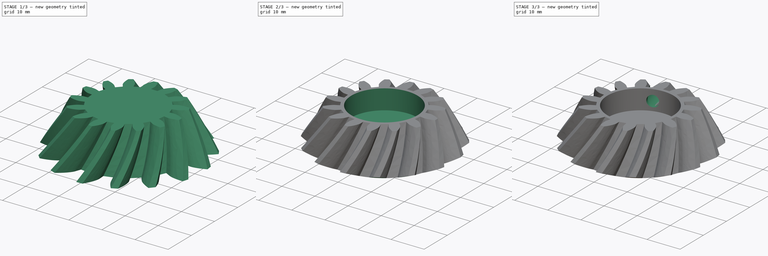
[diagram: build sequence overview — one tinted view per stage of 3, left to right]
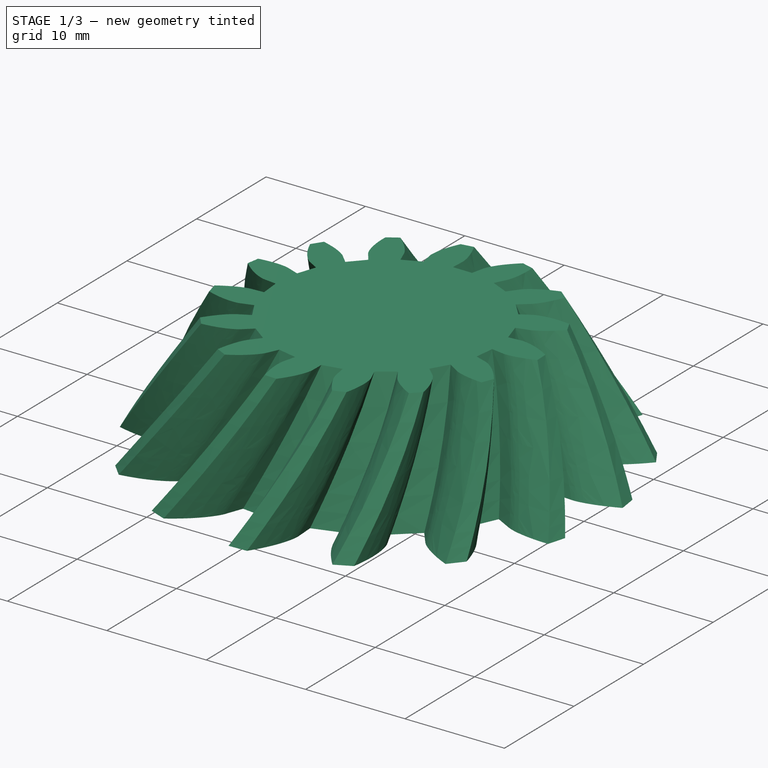
[diagram: stage 1 of 3 — iso view after this stage's code; geometry added in this stage tinted green]
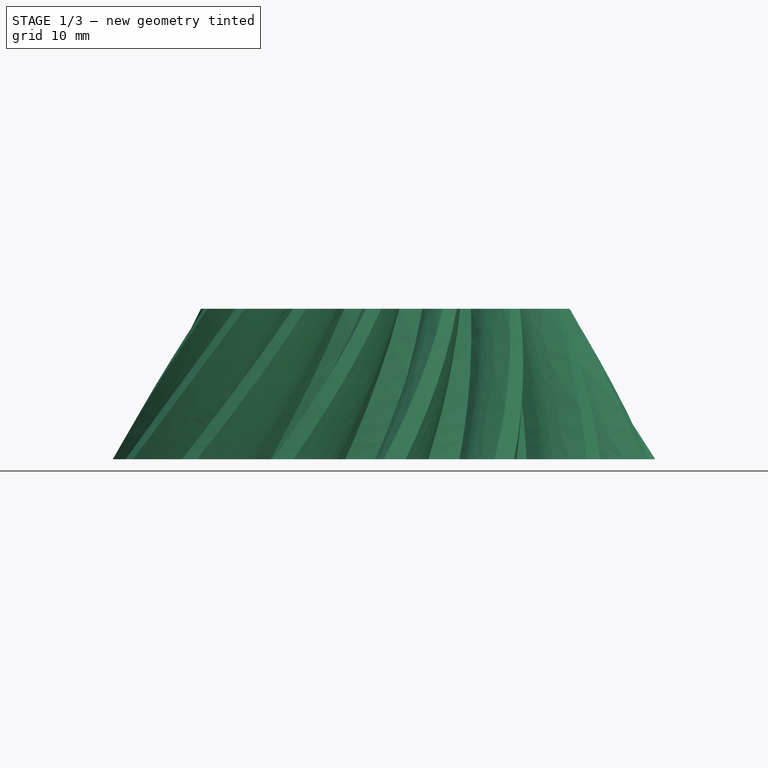
[diagram: stage 1 of 3 — front view after this stage's code; geometry added in this stage tinted green]
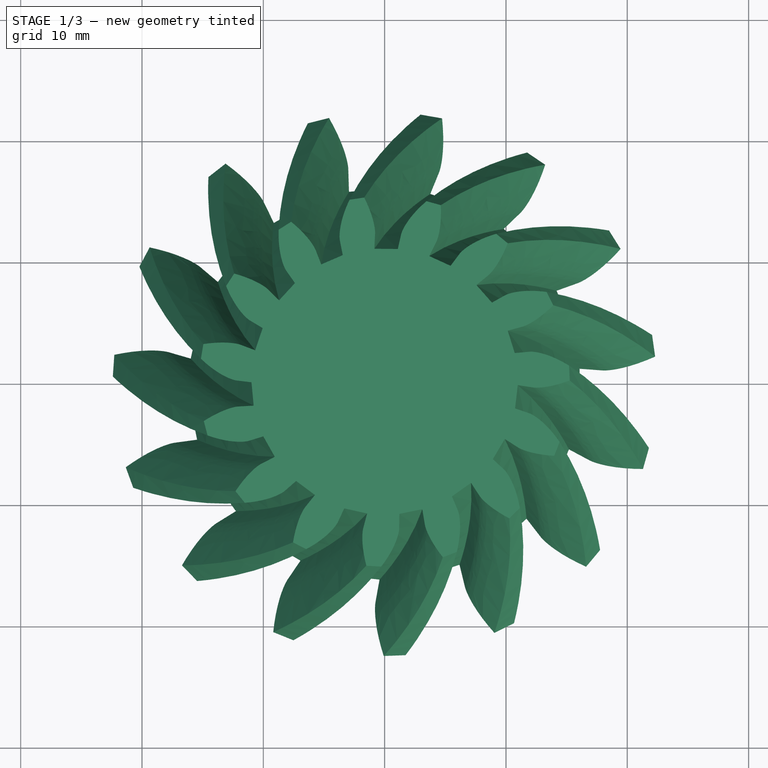
[diagram: stage 1 of 3 — top view after this stage's code; geometry added in this stage tinted green]
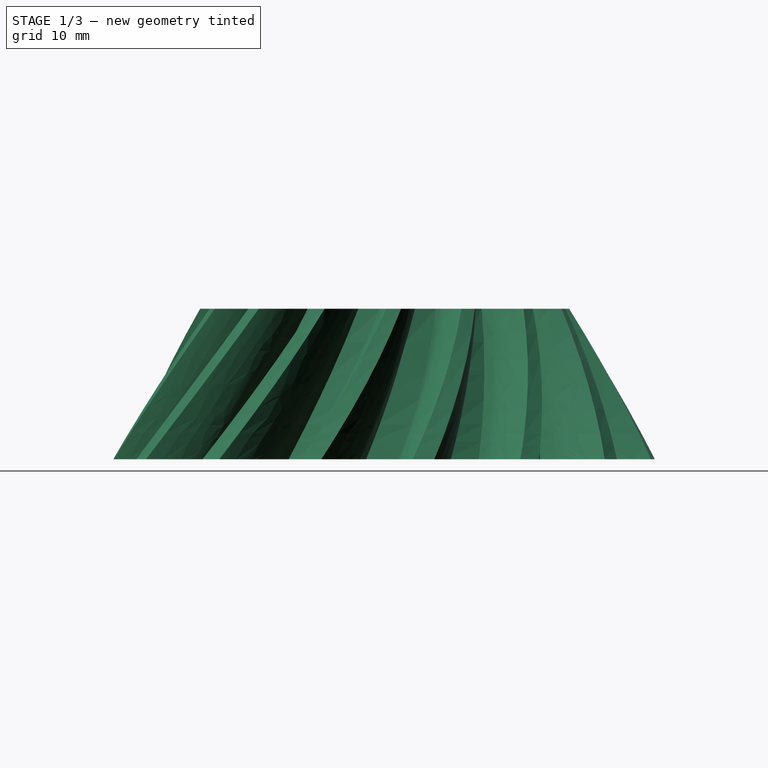
[diagram: stage 1 of 3 — right view after this stage's code; geometry added in this stage tinted green]
FCSTD DOCUMENT  (FreeCAD 0.19R24276 (Git))
Label: Art56SmallGear
License: All rights reserved
LicenseURL: http://en.wikipedia.org/wiki/All_rights_reserved
objects: Sketcher::SketchObject×4, PartDesign::Pocket×3, PartDesign::Plane×2, PartDesign::CoordinateSystem×2, Spreadsheet::Sheet×1, Part::FeaturePython×1, PartDesign::FeatureBase×1, PartDesign::Groove×1, PartDesign::Line×1, PartDesign::Body×1
note: 20 computed .brp shape members not serialized (recipe doc carries the construction recipe); baked Part::Feature solids carry a one-line shape summary decoded from their .brp

FEATURE [Spreadsheet::Sheet] Spreadsheet
  cells = A2=M3BoltBodyRadius; B2(M3BoltBodyRadius)=1.7; A3=M3BoltHeadRadius; B3(M3BoltHeadRadius)=2.95; A4=M3NutCircumradius; B4(M3NutCircumradius)=3.35; A5=M3NutThickness; B5(M3NutThickness)=3; A6=Bearing655ZZBodyRadius; B6(Bearing655ZZBodyRadius)=8.199999999999999; A7=MagnetRadius; B7(MagnetRadius)=4.2; A8=MagnetThickness; B8(MagnetThickness)=1.1; A9=M2BoltBodyRadius; B9(M2BoltBodyRadius)=1.2; A10=M2BoltHeadRadius; B10(M2BoltHeadRadius)=2.1; A11=M5BoltBodyRadius; B11(M5BoltBodyRadius)=2.6
FEATURE [Part::FeaturePython] bevelgear001  label="bevelgear"  # WARN: FeaturePython — macro-defined, semantics opaque (R4)
  backlash = 0
  beta = 10
  clearance = 1
  height = 12.4
  module = 2.59
  numpoints = 20
  pitch_angle = 26.565
  pressure_angle = 20
  reset_origin = true
  teeth = 15
  version = 0.0.3
FEATURE [PartDesign::FeatureBase] BaseFeature
  BaseFeature = -> bevelgear001
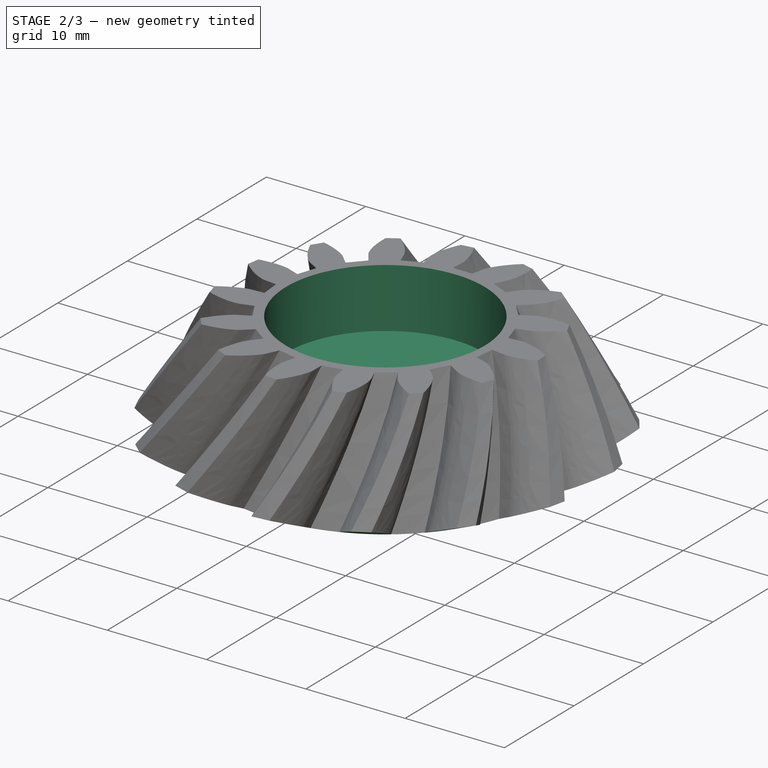
[diagram: stage 2 of 3 — iso view after this stage's code; geometry added in this stage tinted green]
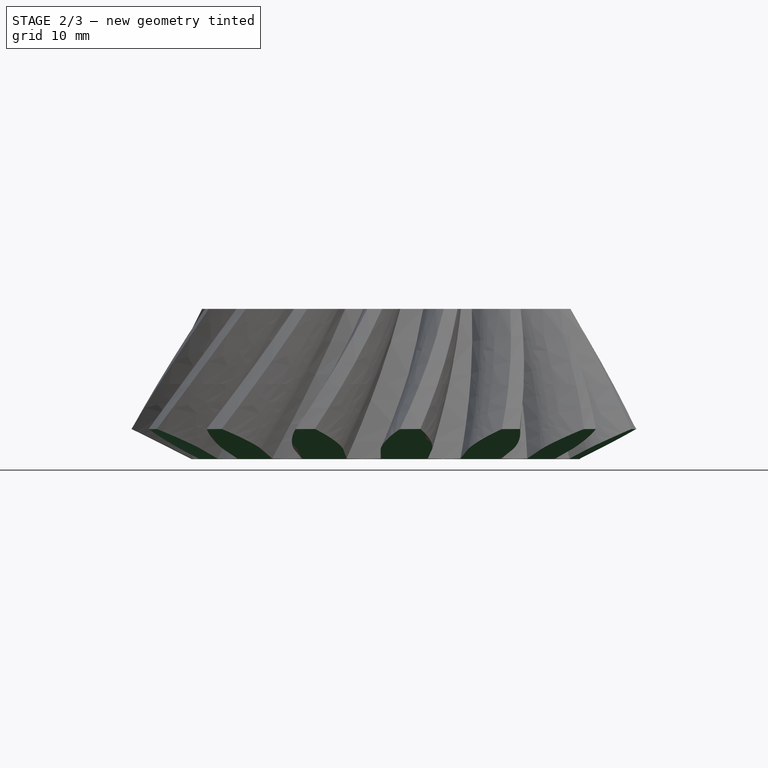
[diagram: stage 2 of 3 — front view after this stage's code; geometry added in this stage tinted green]
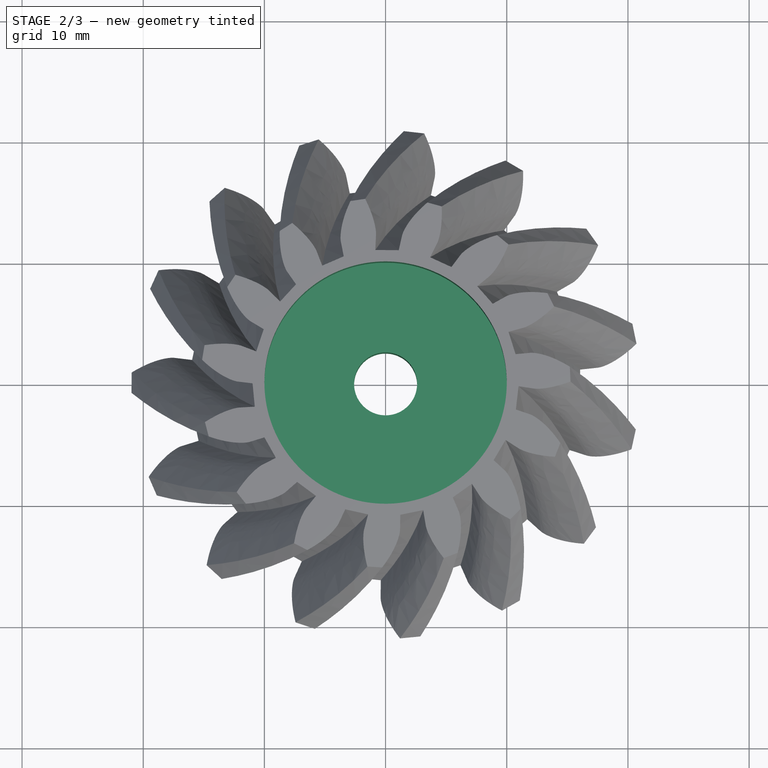
[diagram: stage 2 of 3 — top view after this stage's code; geometry added in this stage tinted green]
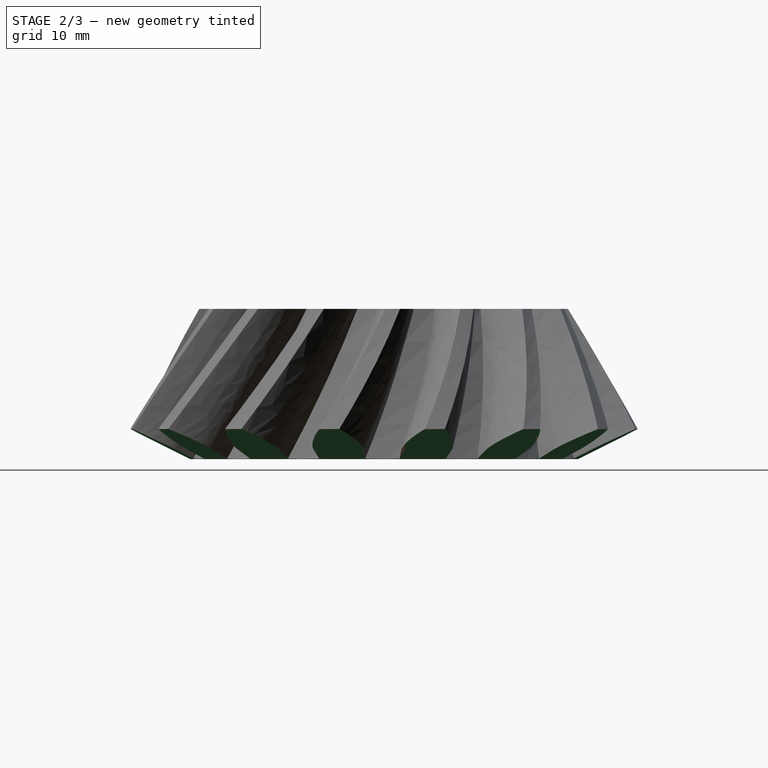
[diagram: stage 2 of 3 — right view after this stage's code; geometry added in this stage tinted green]
FEATURE [Sketcher::SketchObject] Sketch
  FullyConstrained = true
  MapMode = 5
  Placement = pos=(0,0,0) rot=(1,0,0;1.5708rad)
  Support = -> [XZ_Plane]
  sketch-geometry (8):
    g0: LineSegment StartX=16 StartY=0 StartZ=0 EndX=23 EndY=3.49999 EndZ=0
    g1: LineSegment StartX=23 StartY=3.49999 StartZ=0 EndX=26 EndY=3.49999 EndZ=0
    g2: LineSegment StartX=26 StartY=3.49999 StartZ=0 EndX=26 EndY=0 EndZ=0
    g3: LineSegment StartX=26 StartY=0 StartZ=0 EndX=16 EndY=0 EndZ=0
    g4: LineSegment StartX=0 StartY=16.4 StartZ=0 EndX=10 EndY=16.4 EndZ=0
    g5: LineSegment StartX=10 StartY=16.4 StartZ=0 EndX=10 EndY=6.4 EndZ=0
    g6: LineSegment StartX=10 StartY=6.4 StartZ=0 EndX=0 EndY=6.4 EndZ=0
    g7: LineSegment StartX=0 StartY=6.4 StartZ=0 EndX=0 EndY=16.4 EndZ=0
  constraints (24):
    c: PointOnObject(g0,g-1)
    c: Coincident(g0,g1)
    c: Horizontal(g1)
    c: Coincident(g1,g2)
    c: PointOnObject(g2,g-1)
    c: Vertical(g2)
    c: Coincident(g2,g3)
    c: Coincident(g3,g0)
    c: Angle(g3,g0) = 0.463647
    c: DistanceX(g-1,g0) = 16
    c: DistanceX(g3,g3) = 10
    c: DistanceX(g1,g1) = 3
    c: Coincident(g4,g5)
    c: Coincident(g5,g6)
    c: Coincident(g6,g7)
    c: Coincident(g7,g4)
    c: Horizontal(g4)
    c: Horizontal(g6)
    c: Vertical(g5)
    c: Vertical(g7)
    c: PointOnObject(g4,g-2)
    c: DistanceX(g6,g6) = 10
    c: DistanceY(g-1,g6) = 6.4
    c: DistanceY(g7,g7) = 10
FEATURE [PartDesign::Groove] Groove
  Angle = 360
  Axis = (0,2e-16,1)
  Base = (0,0,0)
  BaseFeature = -> BaseFeature
  Profile = -> Sketch
  ReferenceAxis = -> Sketch [V_Axis]
  Refine = true
FEATURE [Sketcher::SketchObject] Sketch001
  FullyConstrained = true
  MapMode = 5
  Placement = pos=(0,1.4e-15,6.4) rot=(0,0,1;0rad)
  Support = -> [Groove]
  expr: Constraints[1] = Spreadsheet.M5BoltBodyRadius
  sketch-geometry (1):
    g0: Circle CenterX=0 CenterY=0 CenterZ=0 NormalX=0 NormalY=0 NormalZ=1 AngleXU=0 Radius=2.6
  constraints (2):
    c: Coincident(g0,g-1)
    c: Radius(g0) = 2.6
FEATURE [PartDesign::Pocket] Pocket
  BaseFeature = -> Groove
  Length = 5
  Length2 = 100
  Profile = -> Sketch001
  Refine = true
  Type = 1
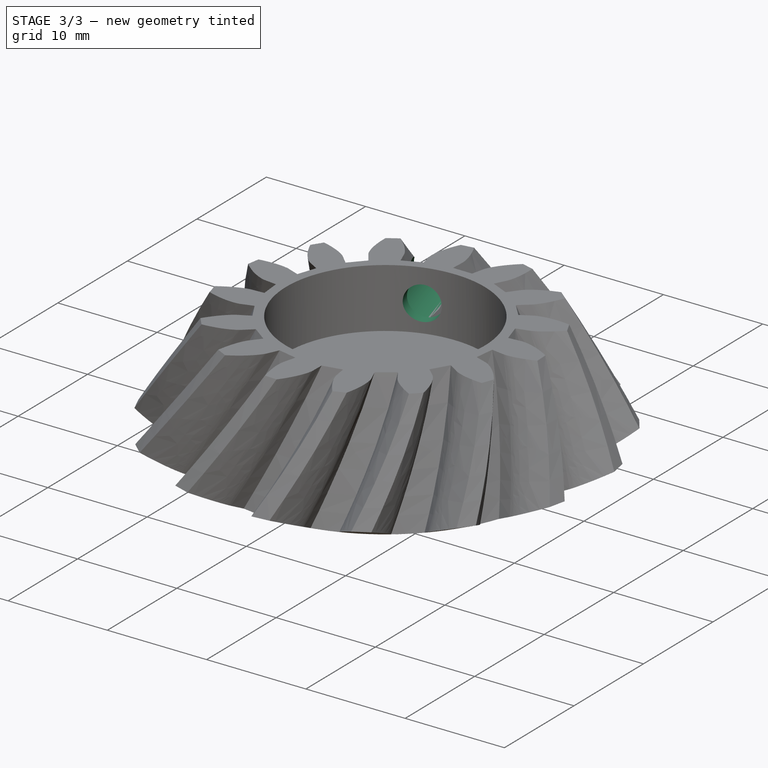
[diagram: stage 3 of 3 — iso view after this stage's code; geometry added in this stage tinted green]
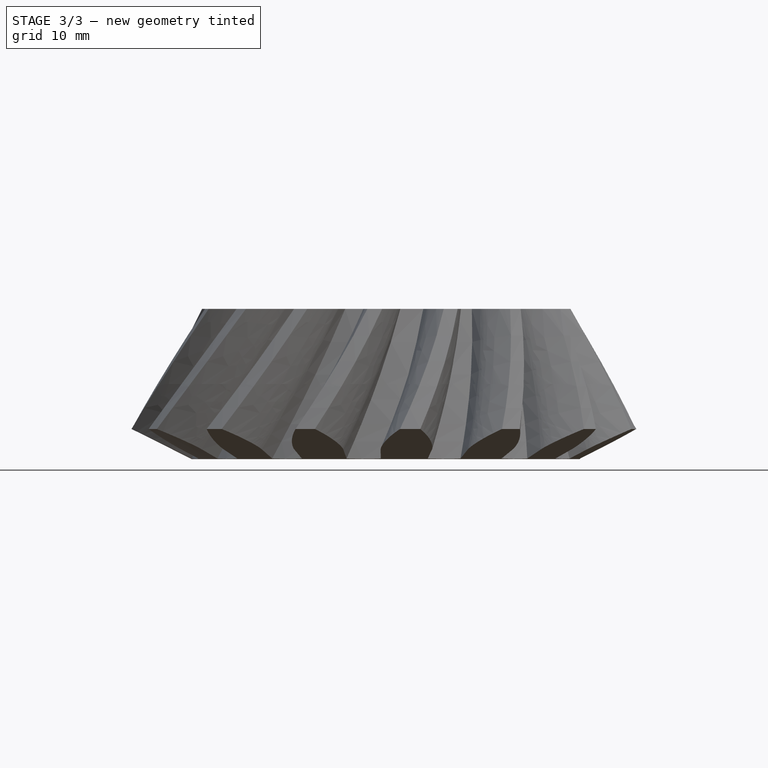
[diagram: stage 3 of 3 — front view after this stage's code; geometry added in this stage tinted green]
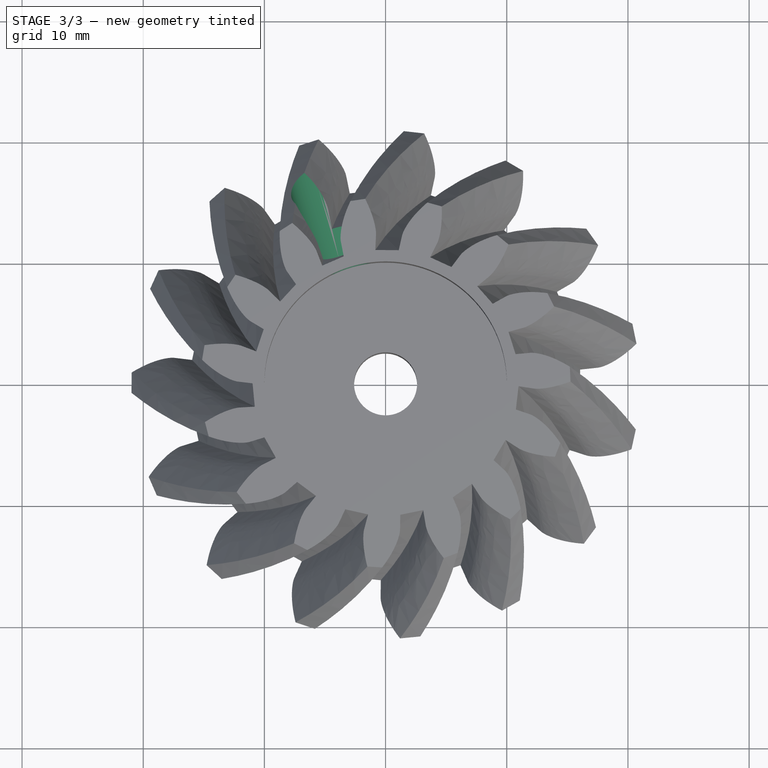
[diagram: stage 3 of 3 — top view after this stage's code; geometry added in this stage tinted green]
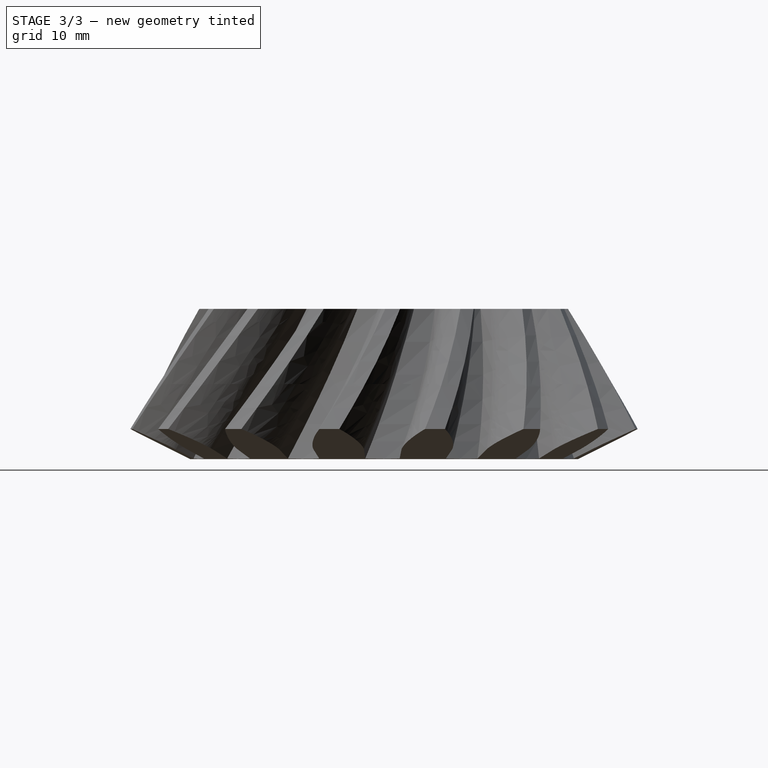
[diagram: stage 3 of 3 — right view after this stage's code; geometry added in this stage tinted green]
FEATURE [PartDesign::Plane] DatumPlane001  label="DatumPlane"
  AttachmentOffset = pos=(0,0,0) rot=(0,1,0;0.296706rad)
  Length = 73.6082
  MapMode = 5
  Placement = pos=(0,0,0) rot=(0.978386,0.146221,0.146221;1.59265rad)
  ResizeMode = 0
  Support = -> [XZ_Plane]
  Width = 61.1744
FEATURE [Sketcher::SketchObject] Sketch002
  FullyConstrained = true
  MapMode = 5
  Placement = pos=(0,0,0) rot=(0.978386,0.146221,0.146221;1.59265rad)
  Support = -> [DatumPlane001]
  expr: Constraints[1] = Spreadsheet.M3BoltBodyRadius
  sketch-geometry (1):
    g0: Circle CenterX=0 CenterY=9.15 CenterZ=0 NormalX=0 NormalY=0 NormalZ=1 AngleXU=0 Radius=1.7
  constraints (3):
    c: PointOnObject(g0,g-2)
    c: Radius(g0) = 1.7
    c: DistanceY(g-1,g0) = 9.15
FEATURE [PartDesign::Pocket] Pocket001
  BaseFeature = -> Pocket
  Length = 5
  Length2 = 100
  Profile = -> Sketch002
  Refine = true
  Type = 1
FEATURE [PartDesign::Plane] DatumPlane  label="DatumPlane001"
  AttachmentOffset = pos=(0,0,-21) rot=(0,0,1;0rad)
  Length = 73.6082
  MapMode = 5
  Placement = pos=(-6.13981,20.0824,-1e-16) rot=(0.978386,0.146221,0.146221;1.59265rad)
  ResizeMode = 0
  Support = -> [DatumPlane001]
  Width = 61.1744
FEATURE [Sketcher::SketchObject] Sketch003
  FullyConstrained = true
  MapMode = 5
  Placement = pos=(-6.13981,20.0824,-1e-16) rot=(0.978386,0.146221,0.146221;1.59265rad)
  Support = -> [DatumPlane]
  expr: Constraints[2] = Spreadsheet.M3BoltHeadRadius
  sketch-geometry (1):
    g0: Circle CenterX=0 CenterY=9.15 CenterZ=0 NormalX=0 NormalY=0 NormalZ=1 AngleXU=0 Radius=2.95
  constraints (3):
    c: PointOnObject(g0,g-2)
    c: DistanceY(g-1,g0) = 9.15
    c: Radius(g0) = 2.95
FEATURE [PartDesign::Pocket] Pocket002
  BaseFeature = -> Pocket001
  Length = 10
  Length2 = 100
  Profile = -> Sketch003
  Refine = true
  Reversed = true
  Type = 0
FEATURE [PartDesign::CoordinateSystem] LCS_Art56SmallGear
  AttacherType = Attacher::AttachEngine3D
  MapMode = 11
  Placement = pos=(7.04758e-05,0,12.4) rot=(0,0,1;1.5708rad)
  Support = -> [Pocket002]
FEATURE [PartDesign::CoordinateSystem] LCS_Pulley
  AttacherType = Attacher::AttachEngine3D
  MapMode = 11
  Placement = pos=(0,1e-15,6.4) rot=(0,0,1;1.5708rad)
  Support = -> [Pocket002]
FEATURE [PartDesign::Line] HoleAxis_1
  AttacherType = Attacher::AttachEngineLine
  Length = 4.79083
  MapMode = 19
  Placement = pos=(-3.21609,10.5194,9.15) rot=(0.978386,0.146221,0.146221;1.59265rad)
  ResizeMode = 1
  Support = -> [Pocket002]
FEATURE [PartDesign::Body] Body  label="Art56SmallGear"
  BaseFeature = -> bevelgear001
  Group = -> [BaseFeature,Sketch,Groove,Sketch001,Pocket,DatumPlane001,Sketch002,Pocket001,DatumPlane,Sketch003,Pocket002,LCS_Art56SmallGear,LCS_Pulley,HoleAxis_1]
  Origin = -> Origin
  Tip = -> Pocket002
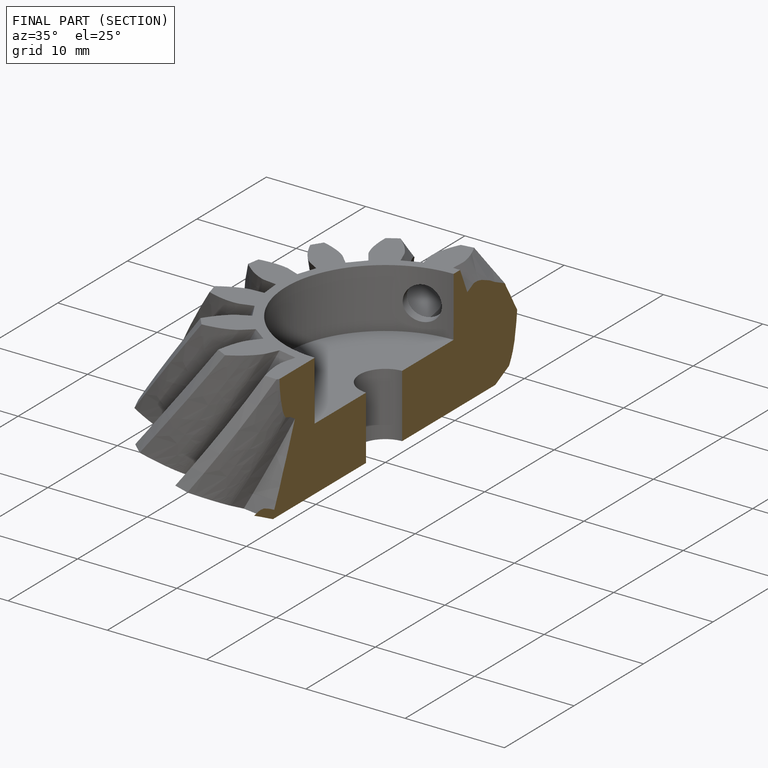
[diagram: finished part — half-section view (interior)]
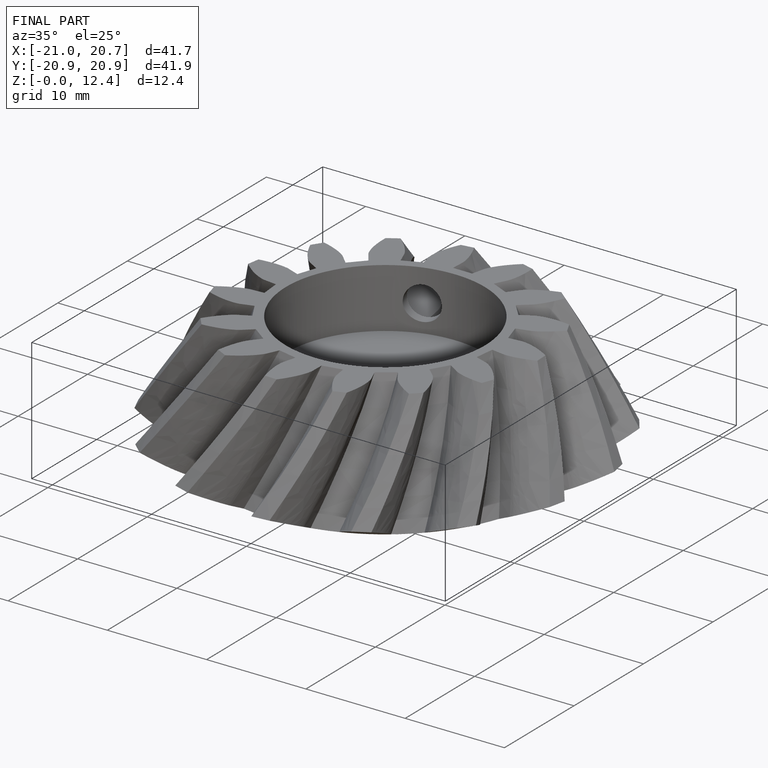
[diagram: finished part — iso view with bounding-box wireframe]
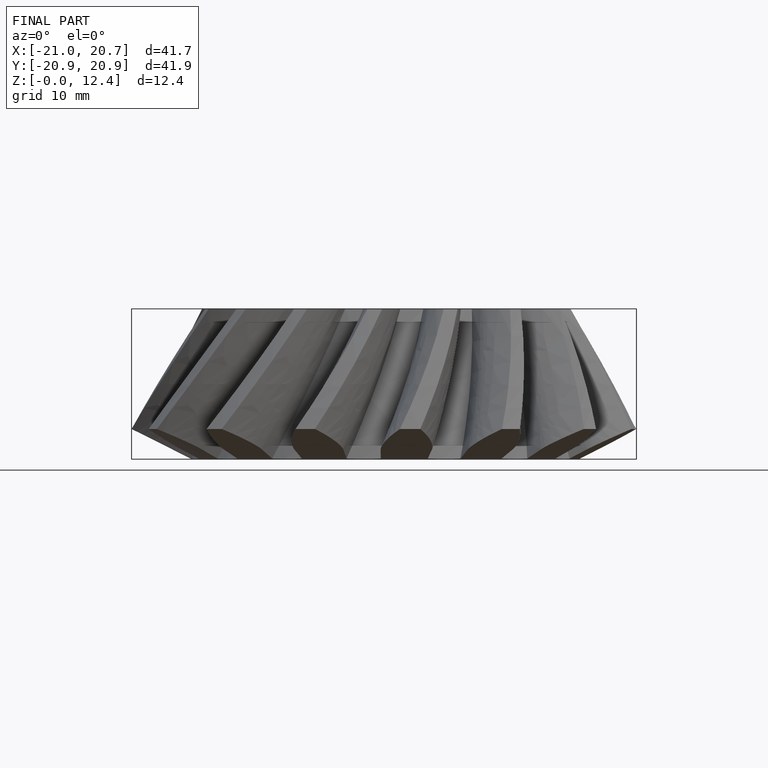
[diagram: finished part — front view with bounding-box wireframe]
